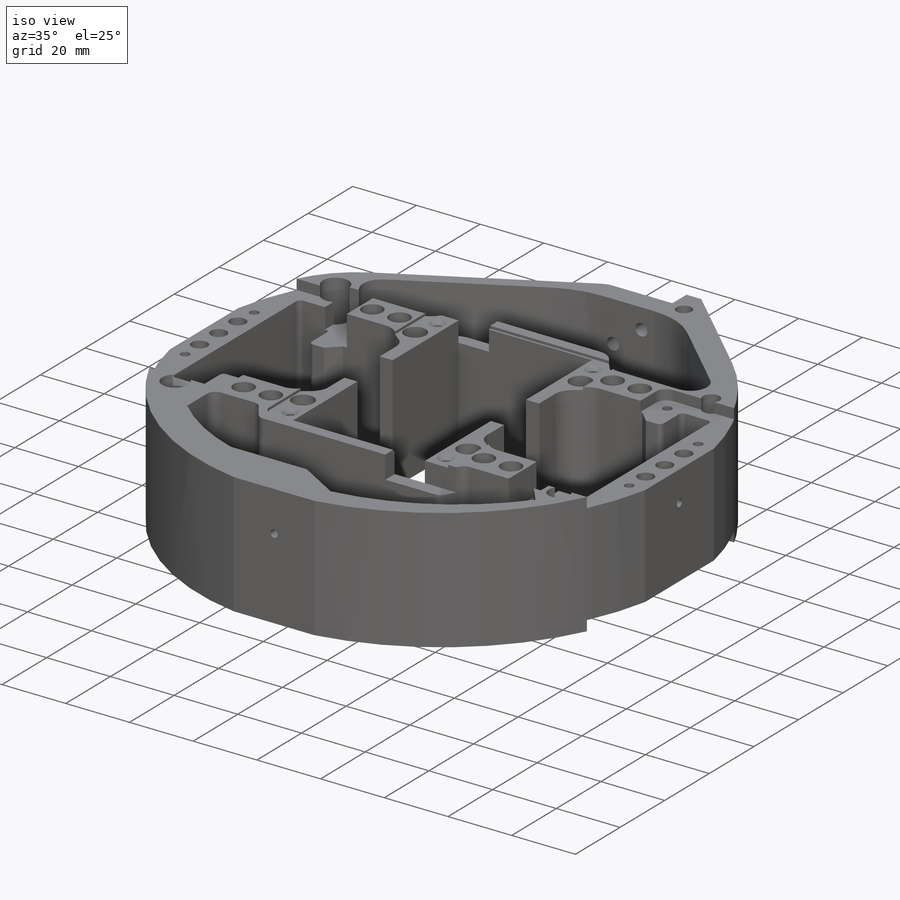
[diagram: iso view]
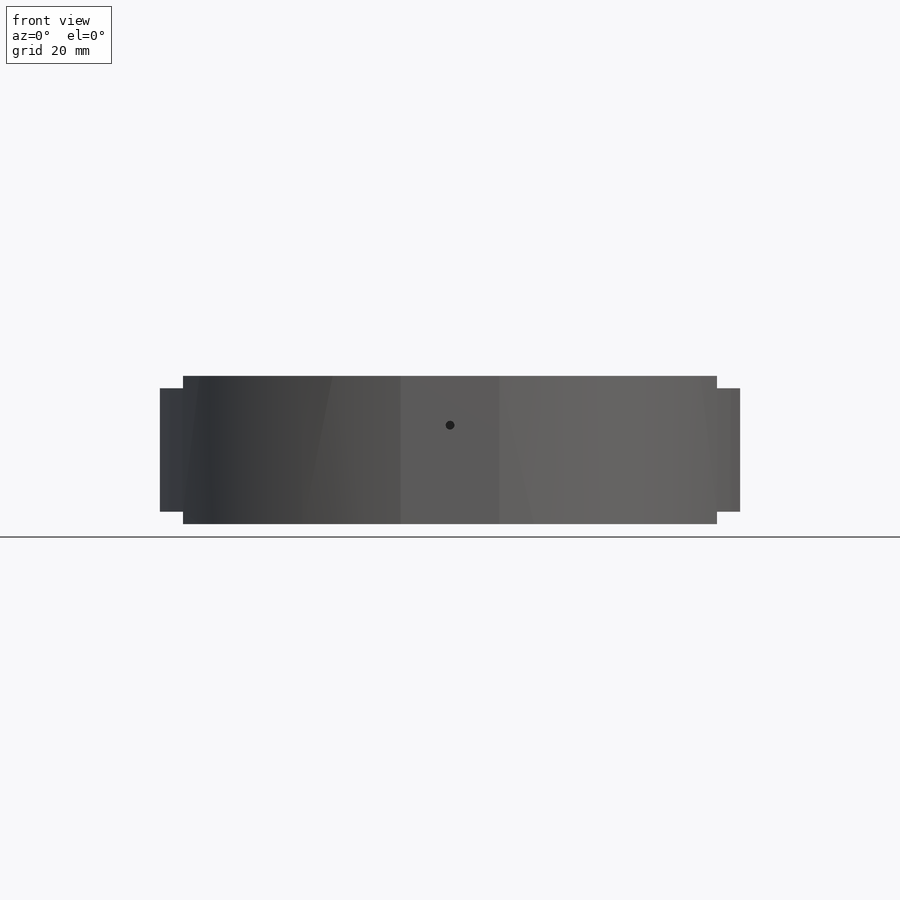
[diagram: front view]
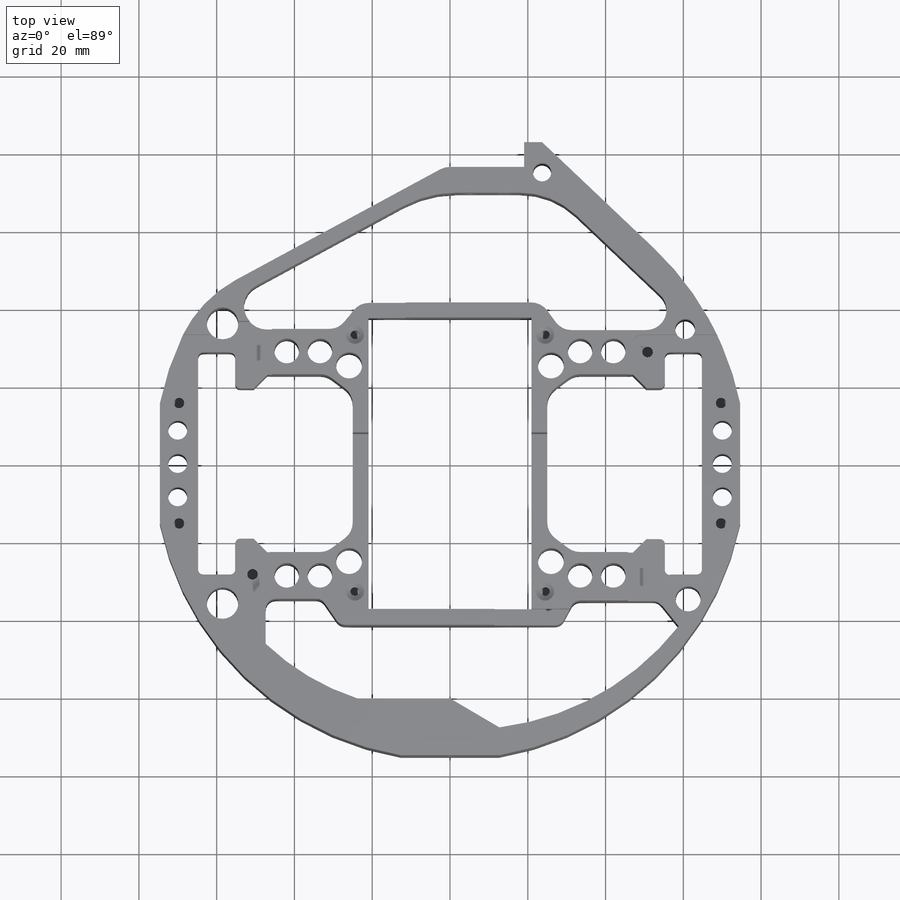
[diagram: top view]
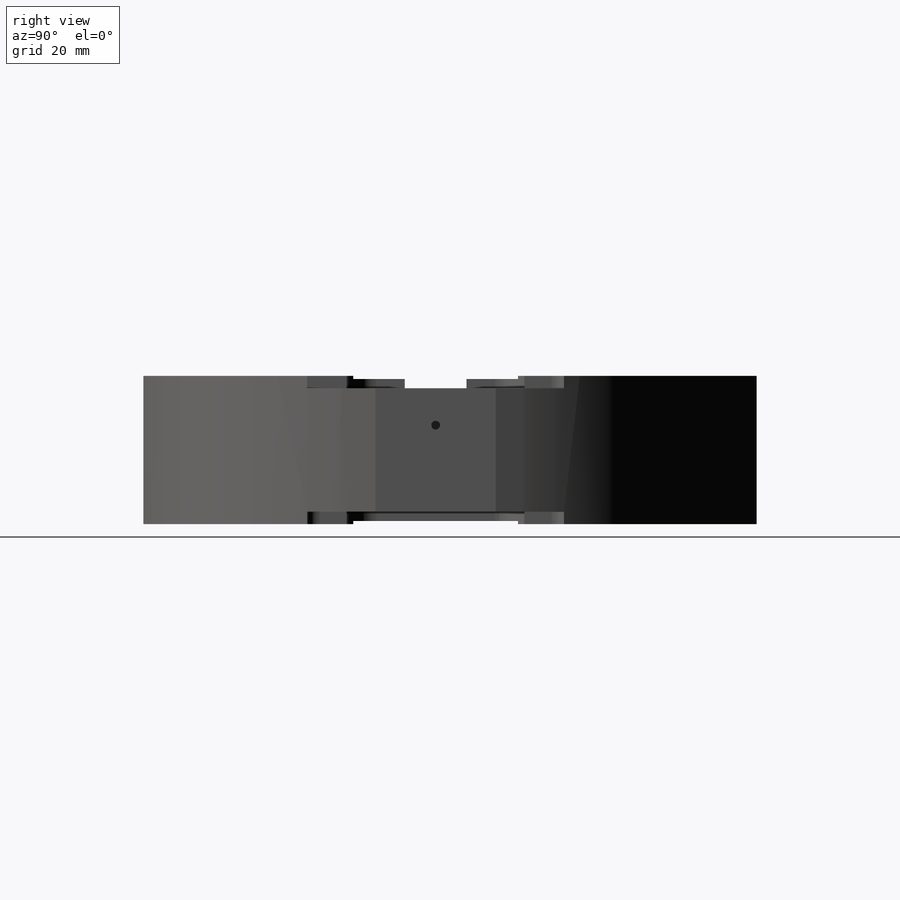
[diagram: right view]
SOLIDWORKS PART (.sldprt)
format: sldprt  version: not decoded by parser v0  size: 924,160 bytes
history: native  units: mm
features: sketch x11, cut_extrude x10, mirror x4, plane x2, chamfer x2, material x1, extrude x1 (+11 scaffold rows collapsed)
feature tree (42):
  scaffold x11  (default folders/planes/origin — collapsed)
  material  "6061 Alloy"
  sketch  "Sketch1"  dims[c1.D1=152.4mm c1.D2=139.7mm c1.D7=1.27mm c1.D10=1.27mm c1.D16=1.27mm c1.D3=5.08mm c1.D22=12.7mm c1.D23=12.7mm c1.D14=17.78mm c1.D24=5.08mm c2.D3=5.08mm c2.D22=1.27mm c2.D23=2.54mm c2.D25=5.08mm c2.D26=5.08mm c2.D27=5.08mm c2.D30=53.34mm c2.D19=2.54mm c2.D33=1.27mm c2.D2=41.91mm c3.D3=82.55mm c3.D4=16.51mm c3.D5=45.72mm c3.D6=74.93mm c3.D8=149.225mm c3.D9=9.525mm c3.D11=6.985mm c3.D12=4.064mm c3.D13=57.15mm c3.D14=66.04mm c3.D15=~9.847901mm c3.D16=~36.422963mm c4.D15=35.56mm c4.D3=101.6mm c4.D17=6.477mm c4.D18=~0.79375mm c5.D17=9.525mm c5.D19=~0.79375mm c5.D20=1.5875mm c5.D21=8.89mm c5.D24=38.735mm c5.D28=~178.982806deg c6.D28=76.2mm c6.D29=3.81mm c6.D27=6.35mm c6.D14=~136.739324deg c7.D14=6.35mm c7.D18=~21.895993mm c7.D20=~21.895993mm c8.D18=19.05mm c8.D20=7.62mm c8.D21=25.4mm c8.D26=4.6355mm c8.D17=~0.79375mm c8.D11=~6.236408mm c9.D11=45.0deg c9.D27=21.971mm c9.D16=21.971mm c9.D31=3.4925mm c10.D31=45.0deg c10.D32=21.971mm c10.D33=3.4925mm c11.D33=45.0deg c11.D34=21.971mm c11.D35=3.4925mm c12.D35=45.0deg]
  extrude  "Boss-Extrude1"  Depth=38.1mm
  plane  "Plane1"
  plane  "Plane2"
  sketch  "Sketch2"  dims[D1=15.875mm D2=6.35mm]
  cut_extrude  "Cut-Extrude1"  Depth=26.9875mm
  sketch  "Sketch3"  dims[D2=3.175mm D1=8.89mm D3=66.04mm D4=33.02mm D6=9.525mm]
  cut_extrude  "Cut-Extrude2"  Depth=3.175mm
  sketch  "Sketch4"  dims[D1=2.7051mm D2=~4.92125mm D3=28.575mm D4=50.8mm]
  cut_extrude  "Cut-Extrude3"  Depth=6.35mm
  mirror  "Mirror1"
  sketch  "Sketch5"  dims[D1=2.0]
  cut_extrude  "Cut-Extrude4"  Depth=12.7mm
  sketch  "Sketch9"  dims[D1=9.525mm D2=2.0]
  cut_extrude  "Cut-Extrude7"  Depth=7.112mm
  sketch  "Sketch10"
  cut_extrude  "Cut-Extrude8"  [1 undecoded]
  sketch  "Sketch11"  dims[D1=2.2606mm D2=9.525mm]
  cut_extrude  "Cut-Extrude9"  Depth=9.525mm
  mirror  "Mirror10"
  sketch  "Sketch12"  dims[D1=2.2606mm D2=12.7mm]
  cut_extrude  "Cut-Extrude10"  Depth=9.525mm
  sketch  "Sketch13"  dims[D1=3.175mm]
  cut_extrude  "Cut-Extrude11"  Depth=0.79375mm
  mirror  "Mirror11"
  sketch  "Sketch6"  dims[D3=2.2606mm D1=33.02mm D2=24.4475mm]
  cut_extrude  "Cut-Extrude5"  Depth=12.7mm
  mirror  "Mirror9"
  chamfer  "Chamfer1"  Distance=1.19507mm Angle=41deg
  chamfer  "Chamfer2"  Distance=1.19507mm Angle=41deg
decode coverage: 22 of 28 modeling features carry decoded parameters
note: ~ marks probable driven/reference dimensions
note: 1 parameter value undecoded
note: suppression state not decoded; provenance and decode notes live in map.json
